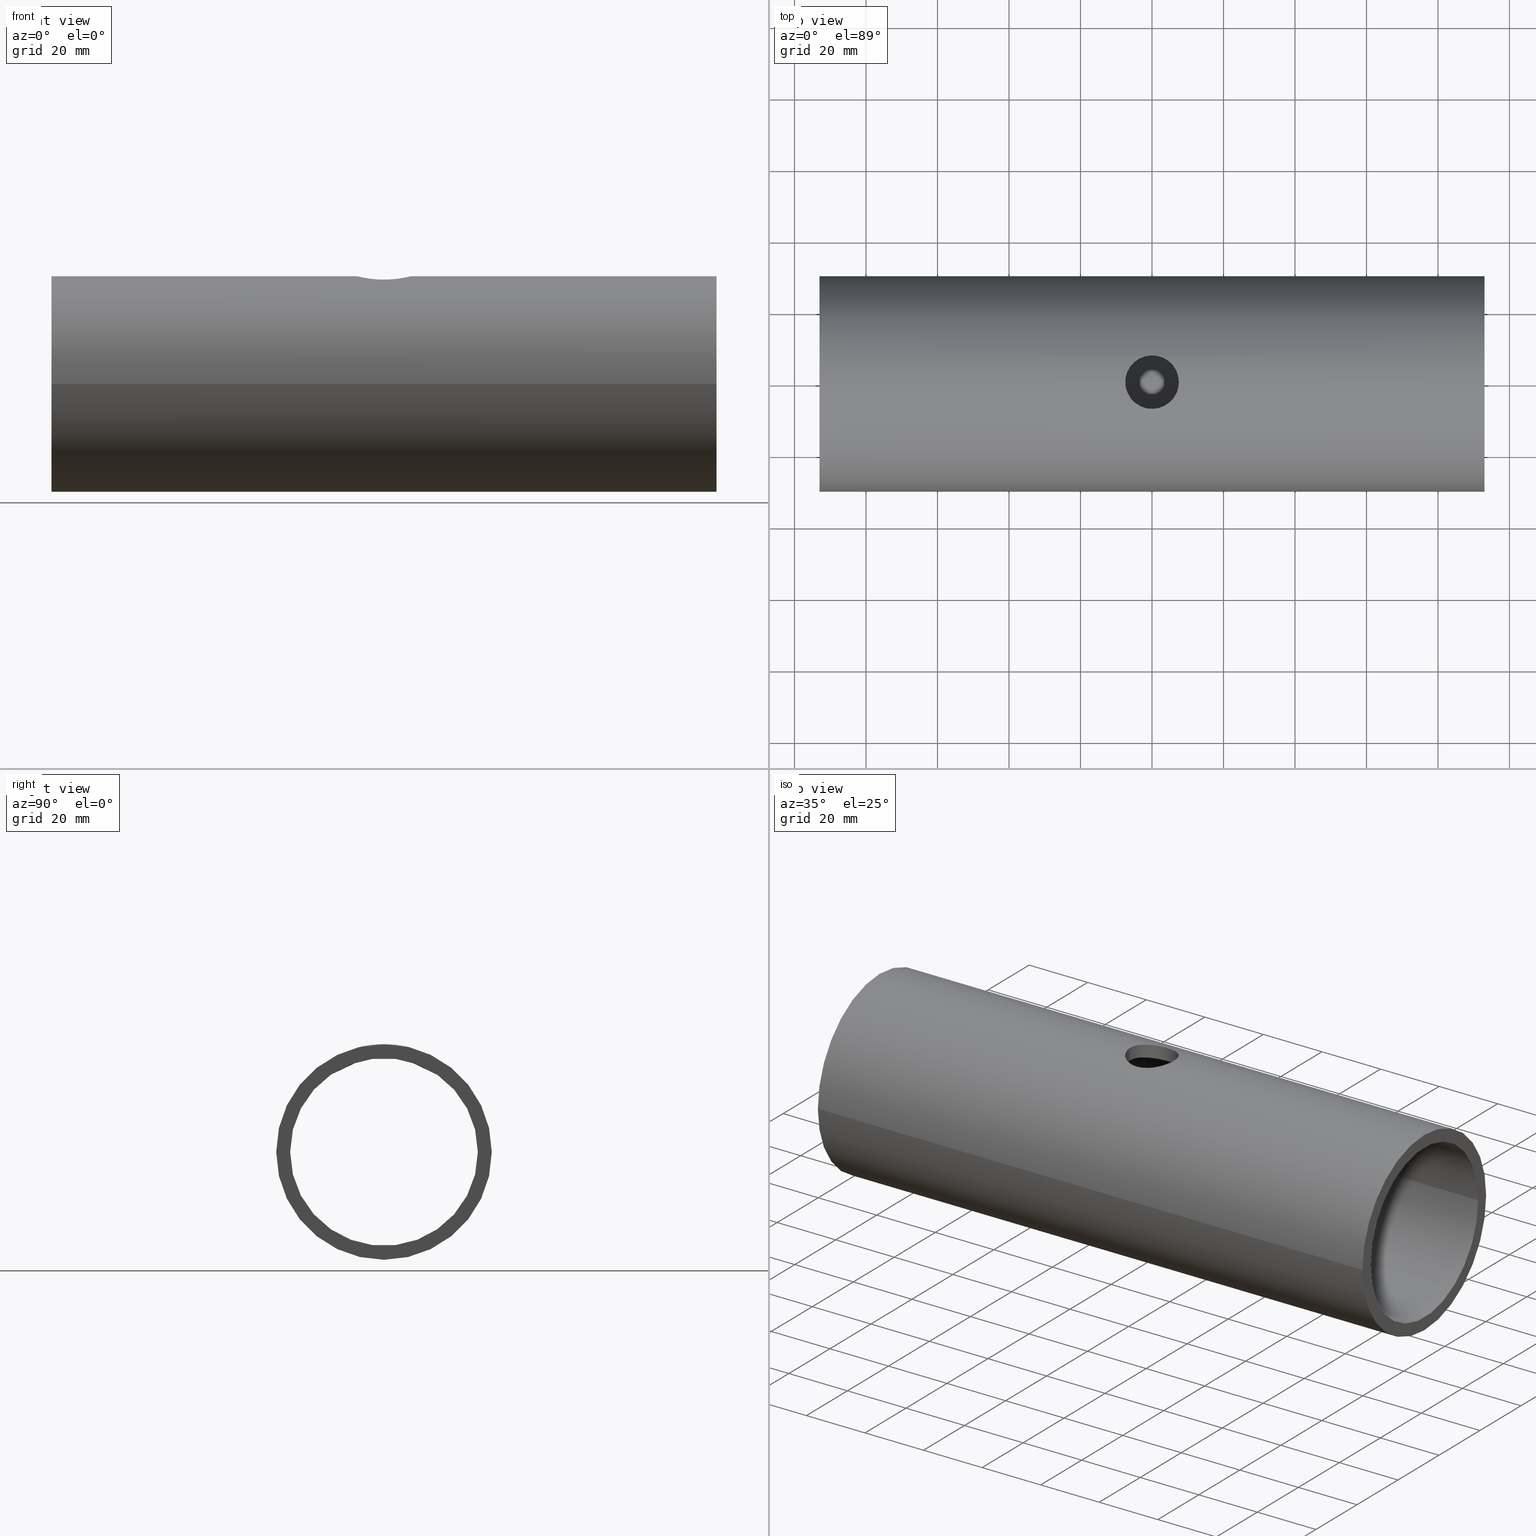
[diagram: canonical four-view strip — front | top / right | iso, engineering-drawing reading convention]
A machine part, canonical four-view strip (front | top / right | iso — engineering-drawing reading convention). The complete STEP part file that produces these views, byte-faithful:
ISO-10303-21;
HEADER;
FILE_DESCRIPTION (( 'STEP AP203' ),
    '1' );
FILE_NAME ('3674-45-11_REV_.step',
    '2026-02-06T22:18:12',
    ( '' ),
    ( '' ),
    'SwSTEP 2.0',
    'SolidWorks 2025',
    '' );
FILE_SCHEMA (( 'CONFIG_CONTROL_DESIGN' ));
ENDSEC;

DATA;
#1 = DIRECTION ( 'NONE',  ( 4.602914695792523219E-16, -1.000000000000000000, 0.000000000000000000 ) ) ;
#2 = AXIS2_PLACEMENT_3D ( 'NONE', #445, #294, #103 ) ;
#3 = CARTESIAN_POINT ( 'NONE',  ( 3.766071702715712899, 6.504168345304149668, 29.44138299919343638 ) ) ;
#4 = EDGE_LOOP ( 'NONE', ( #392, #283 ) ) ;
#5 = APPROVAL ( #441, 'UNSPECIFIED' ) ;
#6 = CARTESIAN_POINT ( 'NONE',  ( -4.569512397707423013, 5.952257490680894492, 29.55703187231505424 ) ) ;
#7 = CARTESIAN_POINT ( 'NONE',  ( 0.000000000000000000, 0.000000000000000000, 30.14999999999999858 ) ) ;
#8 = DIRECTION ( 'NONE',  ( 3.061616997868383141E-16, -1.000000000000000000, 0.000000000000000000 ) ) ;
#9 = CARTESIAN_POINT ( 'NONE',  ( 0.4982442228468673684, 7.487512512649368013, 25.15949742635218200 ) ) ;
#10 = B_SPLINE_CURVE_WITH_KNOTS ( 'NONE', 3,
 ( #129, #173, #20, #12, #176, #426, #469, #430, #210, #460, #286, #432, #276, #239, #356, #397, #389, #317, #62, #9, #93, #167, #312, #459, #128, #275, #53, #354, #319, #15, #461, #244, #391, #17, #448, #36, #224, #188, #181, #370, #367, #140 ),
 .UNSPECIFIED., .F., .F.,
 ( 4, 2, 2, 2, 2, 2, 2, 2, 2, 2, 2, 2, 2, 2, 2, 2, 2, 2, 2, 2, 4 ),
 ( 0.02357184798304131149, 0.02504468882056489626, 0.02651752965808848450, 0.02799037049561206580, 0.02946321133313565405, 0.03019963175189744470, 0.03093605217065923882, 0.03240889300818282359, 0.03388173384570640490, 0.03461815426446819555, 0.03535457468322998620, 0.03682741552075356750, 0.03756383593951535815, 0.03830025635827714880, 0.03977309719580073011, 0.04124593803332431141, 0.04198235845208610900, 0.04271877887084789965, 0.04419161970837148790, 0.04566446054589507614, 0.04713730138341866438 ),
 .UNSPECIFIED. ) ;
#11 = AXIS2_PLACEMENT_3D ( 'NONE', #350, #394, #237 ) ;
#12 = CARTESIAN_POINT ( 'NONE',  ( 7.257323325381391577, 1.956487219723090698, 26.18153013994171019 ) ) ;
#13 = CARTESIAN_POINT ( 'NONE',  ( 0.000000000000000000, 0.000000000000000000, 0.000000000000000000 ) ) ;
#14 = ADVANCED_FACE ( 'NONE', ( #162 ), #273, .F. ) ;
#15 = CARTESIAN_POINT ( 'NONE',  ( -4.579380598035382555, 5.960044461124792470, 25.56599154980069954 ) ) ;
#16 = CARTESIAN_POINT ( 'NONE',  ( -4.580762961181150672, -5.958988755115056435, 29.55658047178147640 ) ) ;
#17 = CARTESIAN_POINT ( 'NONE',  ( -5.947788700670843198, 4.575343241765798652, 25.84890158221534762 ) ) ;
#18 = ORIENTED_EDGE ( 'NONE', *, *, #59, .T. ) ;
#19 = CARTESIAN_POINT ( 'NONE',  ( 6.739165421114840626, -3.327752276682596655, 29.96924127577451458 ) ) ;
#20 = CARTESIAN_POINT ( 'NONE',  ( 7.451918818702840674, 0.9825935118486395226, 26.23613677163786662 ) ) ;
#21 = ORIENTED_EDGE ( 'NONE', *, *, #213, .F. ) ;
#22 = PERSON_AND_ORGANIZATION_ROLE ( 'design_supplier' ) ;
#23 = CARTESIAN_POINT ( 'NONE',  ( -0.4954307896302108660, -7.499779785306837532, 25.15583040220200672 ) ) ;
#24 = EDGE_LOOP ( 'NONE', ( #60, #475 ) ) ;
#25 = FACE_OUTER_BOUND ( 'NONE', #200, .T. ) ;
#26 = VERTEX_POINT ( 'NONE', #159 ) ;
#27 = DIRECTION ( 'NONE',  ( 1.000000000000000000, 3.061616997868383141E-16, -0.000000000000000000 ) ) ;
#28 = APPROVAL_PERSON_ORGANIZATION ( #369, #120, #111 ) ;
#29 = ORIENTED_EDGE ( 'NONE', *, *, #192, .T. ) ;
#30 = DATE_AND_TIME ( #105, #92 ) ;
#31 = CARTESIAN_POINT ( 'NONE',  ( -6.735596941494830681, -3.335135102591766820, 26.04126808146256167 ) ) ;
#32 = CC_DESIGN_PERSON_AND_ORGANIZATION_ASSIGNMENT ( #107, #472, ( #72 ) ) ;
#33 = PRODUCT ( '3674-45-11_REV_', '3674-45-11_REV_', '', ( #362 ) ) ;
#34 = LINE ( 'NONE', #222, #143 ) ;
#35 = CALENDAR_DATE ( 2026, 7, 2 ) ;
#36 = CARTESIAN_POINT ( 'NONE',  ( -6.504483939671300341, 3.765872697938024594, 25.98173926936478750 ) ) ;
#37 = CARTESIAN_POINT ( 'NONE',  ( 4.373605053020555467, 6.097618742075153975, 29.52728789388904573 ) ) ;
#38 = EDGE_CURVE ( 'NONE', #101, #86, #308, .T. ) ;
#39 = AXIS2_PLACEMENT_3D ( 'NONE', #100, #169, #171 ) ;
#40 = CARTESIAN_POINT ( 'NONE',  ( 5.960044983881700453, 4.579051822030483443, 29.80308120121776838 ) ) ;
#41 = CARTESIAN_POINT ( 'NONE',  ( 5.651066934731677094, 4.955251831151683106, 29.74208184411044442 ) ) ;
#42 = DIRECTION ( 'NONE',  ( 1.000000000000000000, 3.061616997868383141E-16, -0.000000000000000000 ) ) ;
#43 = CARTESIAN_POINT ( 'NONE',  ( -1.943605517665027094, 7.260406665600704024, 29.26292426905375876 ) ) ;
#44 = ADVANCED_FACE ( 'NONE', ( #414 ), #452, .F. ) ;
#45 = CARTESIAN_POINT ( 'NONE',  ( -4.947585292974384430, 5.641915681478429256, 29.61783735824583630 ) ) ;
#46 = FACE_OUTER_BOUND ( 'NONE', #208, .T. ) ;
#47 = FACE_OUTER_BOUND ( 'NONE', #336, .T. ) ;
#48 = ORIENTED_EDGE ( 'NONE', *, *, #462, .F. ) ;
#49 = DIRECTION ( 'NONE',  ( -1.000000000000000000, -3.061616997868383141E-16, 0.000000000000000000 ) ) ;
#50 = CC_DESIGN_PERSON_AND_ORGANIZATION_ASSIGNMENT ( #438, #444, ( #33 ) ) ;
#51 = APPLICATION_PROTOCOL_DEFINITION ( 'international standard', 'config_control_design', 1994, #147 ) ;
#52 = ORGANIZATION ( 'UNSPECIFIED', 'UNSPECIFIED', '' ) ;
#53 = CARTESIAN_POINT ( 'NONE',  ( -2.651573279083387469, 7.019901144310327190, 25.29412891396165364 ) ) ;
#54 = CARTESIAN_POINT ( 'NONE',  ( -2.421546531487737131, -7.102577172028079922, 29.30155876653483915 ) ) ;
#55 = DIRECTION ( 'NONE',  ( 5.286776307738840622E-16, -1.000000000000000000, 0.000000000000000000 ) ) ;
#56 = VERTEX_POINT ( 'NONE', #478 ) ;
#57 = CARTESIAN_POINT ( 'NONE',  ( 7.257568485236807199, -1.954565999791516573, 30.09046388291749352 ) ) ;
#58 = CARTESIAN_POINT ( 'NONE',  ( -93.00000000000000000, -1.665519646840400224E-14, 0.000000000000000000 ) ) ;
#59 = EDGE_CURVE ( 'NONE', #254, #219, #73, .T. ) ;
#60 = ORIENTED_EDGE ( 'NONE', *, *, #206, .T. ) ;
#61 = SECURITY_CLASSIFICATION_LEVEL ( 'unclassified' ) ;
#62 = CARTESIAN_POINT ( 'NONE',  ( 0.9901362894668428449, 7.438462277982056392, 25.17404284799605563 ) ) ;
#63 = ORIENTED_EDGE ( 'NONE', *, *, #428, .T. ) ;
#64 = PERSON_AND_ORGANIZATION ( #110, #52 ) ;
#65 = CARTESIAN_POINT ( 'NONE',  ( 2.421665530511560416, -7.115405333184021686, 25.26800389219186727 ) ) ;
#66 = VERTEX_POINT ( 'NONE', #119 ) ;
#67 = DATE_TIME_ROLE ( 'classification_date' ) ;
#68 = CARTESIAN_POINT ( 'NONE',  ( 5.959793766460320441, -4.579171722100744191, 25.85076796984041181 ) ) ;
#69 = EDGE_LOOP ( 'NONE', ( #83, #21 ) ) ;
#70 = EDGE_CURVE ( 'NONE', #26, #66, #259, .T. ) ;
#71 = CARTESIAN_POINT ( 'NONE',  ( 4.948487315591407310, -5.641125964974412987, 25.63719029907033331 ) ) ;
#72 = PRODUCT_DEFINITION_FORMATION_WITH_SPECIFIED_SOURCE ( 'ANY', '', #33, .NOT_KNOWN. ) ;
#73 = LINE ( 'NONE', #271, #104 ) ;
#74 = APPROVAL_DATE_TIME ( #285, #120 ) ;
#75 = CARTESIAN_POINT ( 'NONE',  ( -4.957307021794875368, -5.649050145479054486, 25.63735583606916890 ) ) ;
#76 = CARTESIAN_POINT ( 'NONE',  ( 7.500000000000000000, 0.4905005296950472049, 30.15000000000000213 ) ) ;
#77 = EDGE_CURVE ( 'NONE', #357, #145, #296, .T. ) ;
#78 = CARTESIAN_POINT ( 'NONE',  ( -7.257630751728805230, 1.954404536453142160, 30.09047882440297528 ) ) ;
#79 = CARTESIAN_POINT ( 'NONE',  ( -6.735591639686338006, 3.334789017853641013, 29.96843749655610267 ) ) ;
#80 = CARTESIAN_POINT ( 'NONE',  ( -93.00000000000001421, 30.14999999999998082, 0.000000000000000000 ) ) ;
#81 = CARTESIAN_POINT ( 'NONE',  ( -5.636234865242546910, 4.954054242681979581, 29.74082073236647261 ) ) ;
#82 = CARTESIAN_POINT ( 'NONE',  ( 7.500000000000000000, -0.2455578652031206732, 26.24999999999999645 ) ) ;
#83 = ORIENTED_EDGE ( 'NONE', *, *, #233, .F. ) ;
#84 = CLOSED_SHELL ( 'NONE', ( #14, #95, #284, #266, #158, #471, #166, #44 ) ) ;
#85 = CARTESIAN_POINT ( 'NONE',  ( -93.00000000000001421, 26.24999999999998224, 0.000000000000000000 ) ) ;
#86 = VERTEX_POINT ( 'NONE', #113 ) ;
#87 = CARTESIAN_POINT ( 'NONE',  ( 93.00000000000000000, 4.029087969194792054E-14, 0.000000000000000000 ) ) ;
#88 = EDGE_CURVE ( 'NONE', #466, #98, #34, .T. ) ;
#89 = CARTESIAN_POINT ( 'NONE',  ( -3.761507082169246452, -6.507226810316928400, 29.44073700516980452 ) ) ;
#90 = DIRECTION ( 'NONE',  ( 3.061616997868383141E-16, -1.000000000000000000, 0.000000000000000000 ) ) ;
#91 = CARTESIAN_POINT ( 'NONE',  ( 5.130747045207877832, -5.475928573975543223, 29.64907860583657850 ) ) ;
#92 = LOCAL_TIME ( 9, 18, 12.00000000000000000, #223 ) ;
#93 = CARTESIAN_POINT ( 'NONE',  ( 0.2483299581783618426, 7.499962883882426823, 25.15577581276076202 ) ) ;
#94 = ORIENTED_EDGE ( 'NONE', *, *, #77, .F. ) ;
#95 = ADVANCED_FACE ( 'NONE', ( #371, #46 ), #198, .T. ) ;
#96 = CARTESIAN_POINT ( 'NONE',  ( 3.326732777487045656, -6.726292422648419311, 29.39036565159637959 ) ) ;
#97 = DIRECTION ( 'NONE',  ( 5.286776307738840622E-16, -1.000000000000000000, 0.000000000000000000 ) ) ;
#98 = VERTEX_POINT ( 'NONE', #263 ) ;
#99 = PERSON_AND_ORGANIZATION ( #110, #52 ) ;
#100 = CARTESIAN_POINT ( 'NONE',  ( -93.00000000000000000, -1.665519646840400224E-14, 0.000000000000000000 ) ) ;
#101 = VERTEX_POINT ( 'NONE', #80 ) ;
#102 = PERSON_AND_ORGANIZATION_ROLE ( 'creator' ) ;
#103 = DIRECTION ( 'NONE',  ( 4.602914695792523219E-16, -1.000000000000000000, 0.000000000000000000 ) ) ;
#104 = VECTOR ( 'NONE', #419, 1000.000000000000000 ) ;
#105 = CALENDAR_DATE ( 2026, 7, 2 ) ;
#106 = DIRECTION ( 'NONE',  ( 1.000000000000000000, 3.061616997868383141E-16, -0.000000000000000000 ) ) ;
#107 = PERSON_AND_ORGANIZATION ( #110, #52 ) ;
#108 = CARTESIAN_POINT ( 'NONE',  ( -7.500000000000000000, 0.000000000000000000, 26.24999999999999645 ) ) ;
#109 = CARTESIAN_POINT ( 'NONE',  ( 0.000000000000000000, 0.000000000000000000, 30.14999999999999858 ) ) ;
#110 = PERSON ( 'UNSPECIFIED', 'UNSPECIFIED', 'UNSPECIFIED', ('UNSPECIFIED'), ('UNSPECIFIED'), ('UNSPECIFIED') ) ;
#111 = APPROVAL_ROLE ( '' ) ;
#112 = DIRECTION ( 'NONE',  ( -5.286776307738840622E-16, 1.000000000000000000, 0.000000000000000000 ) ) ;
#113 = CARTESIAN_POINT ( 'NONE',  ( 92.99999999999998579, 30.15000000000004476, 0.000000000000000000 ) ) ;
#114 = CARTESIAN_POINT ( 'NONE',  ( -2.654052559620941665, -7.018943290593978368, 25.29439405483505254 ) ) ;
#115 = CARTESIAN_POINT ( 'NONE',  ( -7.500000000000000000, 0.000000000000000000, 30.14999999999999503 ) ) ;
#116 = CARTESIAN_POINT ( 'NONE',  ( 7.402417214875510076, -1.230903245559818560, 26.22224469222763332 ) ) ;
#117 = CIRCLE ( 'NONE', #465, 30.14999999999999858 ) ;
#118 = CARTESIAN_POINT ( 'NONE',  ( -7.103786089475316423, -2.418084485709030229, 30.05380866094377623 ) ) ;
#119 = CARTESIAN_POINT ( 'NONE',  ( 93.00000000000001421, -30.14999999999995950, 3.692310099429269608E-15 ) ) ;
#120 = APPROVAL ( #293, 'UNSPECIFIED' ) ;
#121 = CARTESIAN_POINT ( 'NONE',  ( 5.132662113620228617, 5.474079756465464186, 29.64941507184972380 ) ) ;
#122 = DIRECTION ( 'NONE',  ( -1.000000000000000000, 0.000000000000000000, 0.000000000000000000 ) ) ;
#123 = CARTESIAN_POINT ( 'NONE',  ( 7.500000000000000000, 9.185202140829394798E-16, 26.25000000000000000 ) ) ;
#124 = DIRECTION ( 'NONE',  ( -1.000000000000000000, -3.061616997868383141E-16, 0.000000000000000000 ) ) ;
#125 = AXIS2_PLACEMENT_3D ( 'NONE', #417, #310, #97 ) ;
#126 = CARTESIAN_POINT ( 'NONE',  ( -2.651822549129052131, -7.019787900416890380, 29.32156775765682610 ) ) ;
#127 = EDGE_CURVE ( 'NONE', #86, #66, #117, .T. ) ;
#128 = CARTESIAN_POINT ( 'NONE',  ( -1.946825517914259063, 7.247145416207924740, 25.22988295778231915 ) ) ;
#129 = CARTESIAN_POINT ( 'NONE',  ( 7.500000000000000000, 9.185202140829394798E-16, 26.25000000000000000 ) ) ;
#130 = FACE_BOUND ( 'NONE', #69, .T. ) ;
#131 = CARTESIAN_POINT ( 'NONE',  ( -7.500000000000000000, 0.000000000000000000, 30.14999999999999858 ) ) ;
#132 = EDGE_CURVE ( 'NONE', #145, #98, #184, .T. ) ;
#133 = EDGE_LOOP ( 'NONE', ( #436, #214, #292, #320 ) ) ;
#134 = CARTESIAN_POINT ( 'NONE',  ( 3.102363331110137956, -6.832721081049528244, 29.36572565191767481 ) ) ;
#135 = CC_DESIGN_APPROVAL ( #5, ( #72 ) ) ;
#136 = CARTESIAN_POINT ( 'NONE',  ( 93.00000000000000000, 4.029087969194792054E-14, 0.000000000000000000 ) ) ;
#137 = EDGE_LOOP ( 'NONE', ( #251, #440, #29, #245 ) ) ;
#138 = CARTESIAN_POINT ( 'NONE',  ( 7.500000000000000888, -0.2453163262941969458, 30.14999999999999503 ) ) ;
#139 = DIRECTION ( 'NONE',  ( 1.000000000000000000, 3.061616997868383141E-16, -0.000000000000000000 ) ) ;
#140 = CARTESIAN_POINT ( 'NONE',  ( -7.500000000000000000, 0.000000000000000000, 26.24999999999999645 ) ) ;
#141 = DESIGN_CONTEXT ( 'detailed design', #344, 'design' ) ;
#142 = CARTESIAN_POINT ( 'NONE',  ( -5.637510002311412194, -4.952645468390433514, 25.77927375884239325 ) ) ;
#143 = VECTOR ( 'NONE', #383, 1000.000000000000000 ) ;
#144 = AXIS2_PLACEMENT_3D ( 'NONE', #87, #202, #422 ) ;
#145 = VERTEX_POINT ( 'NONE', #279 ) ;
#146 = COORDINATED_UNIVERSAL_TIME_OFFSET ( 10, 0, .AHEAD. ) ;
#147 = APPLICATION_CONTEXT ( 'configuration controlled 3d designs of mechanical parts and assemblies' ) ;
#148 = CARTESIAN_POINT ( 'NONE',  ( 6.502740149739227427, -3.768597344396964033, 25.98131429213729859 ) ) ;
#149 = CARTESIAN_POINT ( 'NONE',  ( -92.99999999999998579, -30.15000000000001634, 3.692310099429269608E-15 ) ) ;
#150 = CARTESIAN_POINT ( 'NONE',  ( -3.762350377321380446, -6.506730541467970141, 25.43235298066393568 ) ) ;
#151 = DIRECTION ( 'NONE',  ( 1.000000000000000000, 3.061616997868383141E-16, -0.000000000000000000 ) ) ;
#152 = EDGE_CURVE ( 'NONE', #101, #26, #190, .T. ) ;
#153 = CARTESIAN_POINT ( 'NONE',  ( -6.504952719529422112, -3.764981594919491137, 25.98186096117645860 ) ) ;
#154 = VECTOR ( 'NONE', #269, 1000.000000000000000 ) ;
#155 = CARTESIAN_POINT ( 'NONE',  ( -7.500000000000004441, 0.4975133919157953000, 30.15000000000000924 ) ) ;
#156 = CARTESIAN_POINT ( 'NONE',  ( 7.257022267147787531, -1.956844783364594775, 26.18144794486693172 ) ) ;
#157 = CARTESIAN_POINT ( 'NONE',  ( -7.307132511443547251, -1.707592623641839502, 30.10256673535183225 ) ) ;
#158 = ADVANCED_FACE ( 'NONE', ( #315 ), #464, .T. ) ;
#159 = CARTESIAN_POINT ( 'NONE',  ( -92.99999999999998579, -30.15000000000001990, 3.692310099429272763E-15 ) ) ;
#160 =( GEOMETRIC_REPRESENTATION_CONTEXT ( 3 ) GLOBAL_UNCERTAINTY_ASSIGNED_CONTEXT ( ( #327 ) ) GLOBAL_UNIT_ASSIGNED_CONTEXT ( ( #311, #386, #201 ) ) REPRESENTATION_CONTEXT ( 'NONE', 'WORKASPACE' ) );
#161 = CARTESIAN_POINT ( 'NONE',  ( 3.336186395054809406, 6.735269054361809005, 29.38871611507167714 ) ) ;
#162 = FACE_OUTER_BOUND ( 'NONE', #401, .T. ) ;
#163 = ADVANCED_BREP_SHAPE_REPRESENTATION ( '3674-45-11_REV_', ( #467, #331 ), #160 ) ;
#164 = CARTESIAN_POINT ( 'NONE',  ( -6.505207015342332255, 3.764868579568580564, 29.91686074839271114 ) ) ;
#165 = CARTESIAN_POINT ( 'NONE',  ( -93.00000000000001421, 30.14999999999998082, 0.000000000000000000 ) ) ;
#166 = ADVANCED_FACE ( 'NONE', ( #282, #250 ), #424, .F. ) ;
#167 = CARTESIAN_POINT ( 'NONE',  ( -0.4932893763482117389, 7.500073979778701272, 25.15574269036435595 ) ) ;
#168 = CIRCLE ( 'NONE', #228, 26.25000000000000000 ) ;
#169 = DIRECTION ( 'NONE',  ( -1.000000000000000000, -3.061616997868383141E-16, 0.000000000000000000 ) ) ;
#170 = CARTESIAN_POINT ( 'NONE',  ( -93.00000000000000000, -1.665519646840400224E-14, 0.000000000000000000 ) ) ;
#171 = DIRECTION ( 'NONE',  ( 4.602914695792523219E-16, -1.000000000000000000, 0.000000000000000000 ) ) ;
#172 = CARTESIAN_POINT ( 'NONE',  ( -3.328092222977030890, -6.738853177729461130, 29.38787827632004479 ) ) ;
#173 = CARTESIAN_POINT ( 'NONE',  ( 7.500000000000000000, 0.4909825002862310273, 26.25000000000000711 ) ) ;
#174 = CARTESIAN_POINT ( 'NONE',  ( 7.402539458175037446, -1.230067767044769278, 30.12586753145299312 ) ) ;
#175 = AXIS2_PLACEMENT_3D ( 'NONE', #341, #227, #485 ) ;
#176 = CARTESIAN_POINT ( 'NONE',  ( 7.113836750685355703, 2.425452911901687880, 26.14166035846440650 ) ) ;
#177 = ORIENTED_EDGE ( 'NONE', *, *, #333, .T. ) ;
#178 = DATE_AND_TIME ( #407, #306 ) ;
#179 = FACE_OUTER_BOUND ( 'NONE', #133, .T. ) ;
#180 = ORIENTED_EDGE ( 'NONE', *, *, #70, .T. ) ;
#181 = CARTESIAN_POINT ( 'NONE',  ( -7.257729075573986499, 1.953876576627915362, 26.18164515216760080 ) ) ;
#182 = PRODUCT_DEFINITION_SHAPE ( 'NONE', 'NONE',  #484 ) ;
#183 = CARTESIAN_POINT ( 'NONE',  ( -7.246822489867941641, -1.947966752084596687, 26.17869650504931656 ) ) ;
#184 = CIRCLE ( 'NONE', #125, 26.25000000000000000 ) ;
#185 = APPROVAL_STATUS ( 'not_yet_approved' ) ;
#186 = CYLINDRICAL_SURFACE ( 'NONE', #421, 26.25000000000000000 ) ;
#187 = APPLICATION_PROTOCOL_DEFINITION ( 'international standard', 'config_control_design', 1994, #344 ) ;
#188 = CARTESIAN_POINT ( 'NONE',  ( -7.111404207987189530, 2.432616021029860853, 26.14099483213148289 ) ) ;
#189 = CARTESIAN_POINT ( 'NONE',  ( 7.452356891921847470, 0.9794373226105089758, 30.13803647814817666 ) ) ;
#190 = CIRCLE ( 'NONE', #39, 30.14999999999999858 ) ;
#191 = CARTESIAN_POINT ( 'NONE',  ( -0.9803910238065935978, 7.451841436761557524, 29.21476169554764013 ) ) ;
#192 = EDGE_CURVE ( 'NONE', #211, #56, #247, .T. ) ;
#193 = CARTESIAN_POINT ( 'NONE',  ( 0.2497314937825466374, 7.499921114505808895, 29.20228900758911905 ) ) ;
#194 = DIRECTION ( 'NONE',  ( -1.000000000000000000, 0.000000000000000000, 0.000000000000000000 ) ) ;
#195 = CARTESIAN_POINT ( 'NONE',  ( 1.474577045620115490, 7.365798283767518662, 29.23652853252231409 ) ) ;
#196 = LOCAL_TIME ( 9, 18, 12.00000000000000000, #298 ) ;
#197 = CARTESIAN_POINT ( 'NONE',  ( 7.500000000000000000, 9.184921415273049910E-16, 30.14999999999999858 ) ) ;
#198 = CYLINDRICAL_SURFACE ( 'NONE', #313, 30.14999999999999858 ) ;
#199 = PLANE ( 'NONE',  #411 ) ;
#200 = EDGE_LOOP ( 'NONE', ( #94, #234, #470, #360 ) ) ;
#201 =( NAMED_UNIT ( * ) SI_UNIT ( $, .STERADIAN. ) SOLID_ANGLE_UNIT ( ) );
#202 = DIRECTION ( 'NONE',  ( -1.000000000000000000, -3.061616997868383141E-16, 0.000000000000000000 ) ) ;
#203 = AXIS2_PLACEMENT_3D ( 'NONE', #329, #27, #112 ) ;
#204 = DIRECTION ( 'NONE',  ( -1.000000000000000000, -3.061616997868383141E-16, 0.000000000000000000 ) ) ;
#205 = CARTESIAN_POINT ( 'NONE',  ( -5.950425103151749440, -4.571965928724423200, 29.80195665606953170 ) ) ;
#206 = EDGE_CURVE ( 'NONE', #98, #145, #437, .T. ) ;
#207 = DIRECTION ( 'NONE',  ( -4.602914695792523219E-16, 1.000000000000000000, 0.000000000000000000 ) ) ;
#208 = EDGE_LOOP ( 'NONE', ( #248, #180, #289, #433 ) ) ;
#209 = CARTESIAN_POINT ( 'NONE',  ( -1.709318193299613986, -7.306795961031325781, 29.25125152650506877 ) ) ;
#210 = CARTESIAN_POINT ( 'NONE',  ( 5.650271246520413904, 4.956182449128235135, 25.78029389019253870 ) ) ;
#211 = VERTEX_POINT ( 'NONE', #323 ) ;
#212 = CARTESIAN_POINT ( 'NONE',  ( -3.330092453580004275, -6.737857513618714655, 25.37127348395359050 ) ) ;
#213 = EDGE_CURVE ( 'NONE', #357, #466, #376, .T. ) ;
#214 = ORIENTED_EDGE ( 'NONE', *, *, #77, .T. ) ;
#215 = APPROVAL_DATE_TIME ( #396, #415 ) ;
#216 = CARTESIAN_POINT ( 'NONE',  ( 4.570411846740224604, -5.951568231689370769, 25.56690564317473857 ) ) ;
#217 = ORIENTED_EDGE ( 'NONE', *, *, #152, .F. ) ;
#218 = CARTESIAN_POINT ( 'NONE',  ( 6.738411789018767806, -3.329209596498880597, 26.04200243331143838 ) ) ;
#219 = VERTEX_POINT ( 'NONE', #351 ) ;
#220 = PERSON_AND_ORGANIZATION ( #110, #52 ) ;
#221 = AXIS2_PLACEMENT_3D ( 'NONE', #136, #49, #90 ) ;
#222 = CARTESIAN_POINT ( 'NONE',  ( -93.00000000000001421, 26.24999999999998224, 0.000000000000000000 ) ) ;
#223 = COORDINATED_UNIVERSAL_TIME_OFFSET ( 10, 0, .AHEAD. ) ;
#224 = CARTESIAN_POINT ( 'NONE',  ( -6.734812539582997637, 3.336463782483592766, 26.04106835265158892 ) ) ;
#225 = CARTESIAN_POINT ( 'NONE',  ( 0.4990587722032245876, 7.487433760977843633, 29.20550415064895944 ) ) ;
#226 = B_SPLINE_CURVE_WITH_KNOTS ( 'NONE', 3,
 ( #304, #267, #486, #157, #305, #118, #268, #416, #238, #318, #205, #235, #384, #355, #16, #89, #172, #126, #54, #457, #209, #388, #274, #236, #243, #463, #429, #134, #96, #358, #281, #316, #322, #425, #91, #246, #393, #423, #19, #390, #57, #174, #468, #278, #138, #420 ),
 .UNSPECIFIED., .F., .F.,
 ( 4, 2, 2, 2, 2, 2, 2, 2, 2, 2, 2, 2, 2, 2, 2, 2, 2, 2, 2, 2, 2, 2, 4 ),
 ( 0.000000000000000000, 0.001471322269676322890, 0.002206983404514484878, 0.002942644539352647082, 0.004413966809028971490, 0.005149627943867134128, 0.005885289078705296766, 0.007356611348381623776, 0.008827933618057949919, 0.009563594752896115159, 0.01029925588773427866, 0.01177057815741060394, 0.01324190042708693268, 0.01471322269676325969, 0.01544888383160142320, 0.01618454496643958671, 0.01692020610127775021, 0.01765586723611591718, 0.01912718950579224073, 0.02059851177546856080, 0.02206983404514488434, 0.02280549517998304437, 0.02354115631482120788 ),
 .UNSPECIFIED. ) ;
#227 = DIRECTION ( 'NONE',  ( -1.000000000000000000, -3.061616997868383141E-16, 0.000000000000000000 ) ) ;
#228 = AXIS2_PLACEMENT_3D ( 'NONE', #58, #204, #55 ) ;
#229 = CARTESIAN_POINT ( 'NONE',  ( 2.652066994098781105, 7.019796142560697838, 29.32156984454651649 ) ) ;
#230 = CARTESIAN_POINT ( 'NONE',  ( -5.946970573337897470, 4.576389176574049422, 29.80127066718347706 ) ) ;
#231 = DIRECTION ( 'NONE',  ( 0.000000000000000000, 0.000000000000000000, -1.000000000000000000 ) ) ;
#232 = CARTESIAN_POINT ( 'NONE',  ( -3.326864187929616357, 6.739568182332551061, 29.38771701239393153 ) ) ;
#233 = EDGE_CURVE ( 'NONE', #466, #357, #168, .T. ) ;
#234 = ORIENTED_EDGE ( 'NONE', *, *, #213, .T. ) ;
#235 = CARTESIAN_POINT ( 'NONE',  ( -5.638263810258049347, -4.951809019698746539, 29.74120173120269328 ) ) ;
#236 = CARTESIAN_POINT ( 'NONE',  ( 0.4882143344692567721, -7.500204959943273408, 29.20221610775301002 ) ) ;
#237 = DIRECTION ( 'NONE',  ( 5.286776307738840622E-16, -1.000000000000000000, 0.000000000000000000 ) ) ;
#238 = CARTESIAN_POINT ( 'NONE',  ( -6.506147090195717020, -3.762942013762233806, 29.91707855406400540 ) ) ;
#239 = CARTESIAN_POINT ( 'NONE',  ( 3.767512594301681617, 6.503277777481168975, 25.43319712410920630 ) ) ;
#240 = B_SPLINE_CURVE_WITH_KNOTS ( 'NONE', 3,
 ( #108, #403, #409, #482, #183, #326, #442, #31, #153, #332, #408, #142, #373, #75, #480, #150, #212, #114, #300, #299, #363, #477, #23, #291, #399, #439, #65, #473, #255, #258, #288, #434, #216, #71, #405, #365, #68, #148, #218, #379, #156, #116, #303, #272, #82, #123 ),
 .UNSPECIFIED., .F., .F.,
 ( 4, 2, 2, 2, 2, 2, 2, 2, 2, 2, 2, 2, 2, 2, 2, 2, 2, 2, 2, 2, 2, 2, 4 ),
 ( 0.000000000000000000, 0.001473240498940076330, 0.002209860748410115254, 0.002946480997880153961, 0.004419721496820232243, 0.005156341746290273552, 0.005892961995760314861, 0.007366202494700398347, 0.008839442993640481833, 0.009576063243110524009, 0.01031268349258056619, 0.01178592399152065054, 0.01325916449046073489, 0.01473240498940081925, 0.01546902523887086142, 0.01620564548834090013, 0.01694226573781094231, 0.01767888598728098101, 0.01915212648622106537, 0.02062536698516114625, 0.02209860748410123060, 0.02283522773357126931, 0.02357184798304131149 ),
 .UNSPECIFIED. ) ;
#241 = VECTOR ( 'NONE', #42, 1000.000000000000000 ) ;
#242 = EDGE_CURVE ( 'NONE', #219, #56, #10, .T. ) ;
#243 = CARTESIAN_POINT ( 'NONE',  ( 0.9874810106022189338, -7.450921503063904439, 29.21499814875050660 ) ) ;
#244 = CARTESIAN_POINT ( 'NONE',  ( -5.472852982011519707, 5.133906058509772663, 25.74366513659960276 ) ) ;
#245 = ORIENTED_EDGE ( 'NONE', *, *, #242, .F. ) ;
#246 = CARTESIAN_POINT ( 'NONE',  ( 5.651803211857749254, -4.954649978676517463, 29.74220178934695724 ) ) ;
#247 = LINE ( 'NONE', #131, #252 ) ;
#248 = ORIENTED_EDGE ( 'NONE', *, *, #428, .F. ) ;
#249 = CALENDAR_DATE ( 2026, 7, 2 ) ;
#250 = FACE_OUTER_BOUND ( 'NONE', #4, .T. ) ;
#251 = ORIENTED_EDGE ( 'NONE', *, *, #59, .F. ) ;
#252 = VECTOR ( 'NONE', #359, 1000.000000000000000 ) ;
#253 = CYLINDRICAL_SURFACE ( 'NONE', #203, 26.25000000000000000 ) ;
#254 = VERTEX_POINT ( 'NONE', #261 ) ;
#255 = CARTESIAN_POINT ( 'NONE',  ( 3.329099623049039725, -6.725110091659699307, 25.37419375296325441 ) ) ;
#256 = ORIENTED_EDGE ( 'NONE', *, *, #70, .F. ) ;
#257 = DATE_TIME_ROLE ( 'creation_date' ) ;
#258 = CARTESIAN_POINT ( 'NONE',  ( 3.760854861028969598, -6.493533765170020011, 25.43444187707800452 ) ) ;
#259 = LINE ( 'NONE', #149, #154 ) ;
#260 = COORDINATED_UNIVERSAL_TIME_OFFSET ( 10, 0, .AHEAD. ) ;
#261 = CARTESIAN_POINT ( 'NONE',  ( 7.500000000000000000, 9.184921415273049910E-16, 30.14999999999999858 ) ) ;
#262 = CC_DESIGN_APPROVAL ( #415, ( #447 ) ) ;
#263 = CARTESIAN_POINT ( 'NONE',  ( 92.99999999999998579, 26.25000000000003553, 0.000000000000000000 ) ) ;
#264 = DIRECTION ( 'NONE',  ( -5.286776307738840622E-16, 1.000000000000000000, 0.000000000000000000 ) ) ;
#265 = CARTESIAN_POINT ( 'NONE',  ( 1.949317793693996936, 7.246404862537918490, 29.26632075175182024 ) ) ;
#266 = ADVANCED_FACE ( 'NONE', ( #25, #335 ), #186, .F. ) ;
#267 = CARTESIAN_POINT ( 'NONE',  ( -7.500000000000002665, -0.4976474038176006975, 30.14999999999999503 ) ) ;
#268 = CARTESIAN_POINT ( 'NONE',  ( -7.019674602828236409, -2.652269279872598418, 30.03397924884832904 ) ) ;
#269 = DIRECTION ( 'NONE',  ( 1.000000000000000000, 3.061616997868383141E-16, -0.000000000000000000 ) ) ;
#270 = CARTESIAN_POINT ( 'NONE',  ( -2.422259537131511653, 7.114946475133408832, 29.29909942542335699 ) ) ;
#271 = CARTESIAN_POINT ( 'NONE',  ( 7.500000000000000000, 9.184850993605147944E-16, 30.14999999999999858 ) ) ;
#272 = CARTESIAN_POINT ( 'NONE',  ( 7.487970237574799626, -0.4913853977594473399, 26.24655510308049244 ) ) ;
#273 = CYLINDRICAL_SURFACE ( 'NONE', #340, 7.500000000000000000 ) ;
#274 = CARTESIAN_POINT ( 'NONE',  ( -0.4944913900703654663, -7.499793726675769712, 29.20232172452015362 ) ) ;
#275 = CARTESIAN_POINT ( 'NONE',  ( -2.420343119787519370, 7.103040578749562961, 25.27083151152125495 ) ) ;
#276 = CARTESIAN_POINT ( 'NONE',  ( 4.374061799618885971, 6.097276164234351370, 25.53243295943962821 ) ) ;
#277 = EDGE_CURVE ( 'NONE', #66, #86, #382, .T. ) ;
#278 = CARTESIAN_POINT ( 'NONE',  ( 7.487994097889282052, -0.4910265475897015452, 30.14700650159188200 ) ) ;
#279 = CARTESIAN_POINT ( 'NONE',  ( 93.00000000000001421, -26.24999999999995737, 3.214697847761801189E-15 ) ) ;
#280 = CC_DESIGN_APPROVAL ( #120, ( #484 ) ) ;
#281 = CARTESIAN_POINT ( 'NONE',  ( 3.968391808847914870, -6.368773135371746719, 29.46999188444867457 ) ) ;
#282 = FACE_BOUND ( 'NONE', #24, .T. ) ;
#283 = ORIENTED_EDGE ( 'NONE', *, *, #277, .F. ) ;
#284 = ADVANCED_FACE ( 'NONE', ( #179 ), #253, .F. ) ;
#285 = DATE_AND_TIME ( #290, #427 ) ;
#286 = CARTESIAN_POINT ( 'NONE',  ( 4.948289129293734767, 5.641310561938008838, 25.63715060133847601 ) ) ;
#287 = COORDINATED_UNIVERSAL_TIME_OFFSET ( 10, 0, .AHEAD. ) ;
#288 = CARTESIAN_POINT ( 'NONE',  ( 3.969903232452988817, -6.367824406519703828, 25.46630650255037054 ) ) ;
#289 = ORIENTED_EDGE ( 'NONE', *, *, #277, .T. ) ;
#290 = CALENDAR_DATE ( 2026, 7, 2 ) ;
#291 = CARTESIAN_POINT ( 'NONE',  ( 0.4887408361427151848, -7.500218722843835728, 25.15569953632676103 ) ) ;
#292 = ORIENTED_EDGE ( 'NONE', *, *, #206, .F. ) ;
#293 = APPROVAL_STATUS ( 'not_yet_approved' ) ;
#294 = DIRECTION ( 'NONE',  ( -1.000000000000000000, -3.061616997868383141E-16, 0.000000000000000000 ) ) ;
#295 = CC_DESIGN_PERSON_AND_ORGANIZATION_ASSIGNMENT ( #402, #102, ( #484 ) ) ;
#296 = LINE ( 'NONE', #443, #241 ) ;
#297 = B_SPLINE_CURVE_WITH_KNOTS ( 'NONE', 3,
 ( #197, #76, #189, #453, #309, #375, #377, #450, #449, #40, #41, #121, #345, #374, #37, #3, #161, #229, #307, #265, #195, #339, #225, #193, #410, #191, #43, #270, #232, #418, #381, #6, #45, #451, #455, #81, #230, #347, #164, #79, #483, #78, #342, #155, #115 ),
 .UNSPECIFIED., .F., .F.,
 ( 4, 2, 2, 2, 2, 2, 2, 2, 2, 2, 1, 2, 2, 2, 2, 2, 2, 2, 2, 2, 2, 2, 4 ),
 ( 0.02354115631482120788, 0.02501208237084502281, 0.02648300842686884121, 0.02721847145488074868, 0.02795393448289265614, 0.02942486053891647108, 0.03016032356692837854, 0.03089578659494028601, 0.03236671265096410094, 0.03310217567897601187, 0.03383763870698791587, 0.03457310173499981987, 0.03530856476301173080, 0.03677949081903554573, 0.03825041687505936067, 0.03972134293108317560, 0.04045680595909508653, 0.04119226898710699053, 0.04192773201511889453, 0.04266319504313080546, 0.04413412109915461345, 0.04560504715517842145, 0.04707597321120222944 ),
 .UNSPECIFIED. ) ;
#298 = COORDINATED_UNIVERSAL_TIME_OFFSET ( 10, 0, .AHEAD. ) ;
#299 = CARTESIAN_POINT ( 'NONE',  ( -1.952880253302268443, -7.245470657837382866, 25.23036323795800584 ) ) ;
#300 = CARTESIAN_POINT ( 'NONE',  ( -2.423745247340379549, -7.101833940139360202, 25.27116991473822694 ) ) ;
#301 = APPROVAL_PERSON_ORGANIZATION ( #99, #415, #325 ) ;
#302 = CC_DESIGN_DATE_AND_TIME_ASSIGNMENT ( #431, #67, ( #447 ) ) ;
#303 = CARTESIAN_POINT ( 'NONE',  ( 7.439335117364487715, -0.9835908191340029250, 26.23272123681961787 ) ) ;
#304 = CARTESIAN_POINT ( 'NONE',  ( -7.500000000000000000, 0.000000000000000000, 30.14999999999999503 ) ) ;
#305 = CARTESIAN_POINT ( 'NONE',  ( -7.247387241459818163, -1.945838522944582927, 30.08807504728859428 ) ) ;
#306 = LOCAL_TIME ( 9, 18, 12.00000000000000000, #146 ) ;
#307 = CARTESIAN_POINT ( 'NONE',  ( 2.418854200822524891, 7.103475744154301275, 29.30134034696099476 ) ) ;
#308 = LINE ( 'NONE', #165, #413 ) ;
#309 = CARTESIAN_POINT ( 'NONE',  ( 7.114599166557021626, 2.423139489458612683, 30.05589392545645921 ) ) ;
#310 = DIRECTION ( 'NONE',  ( -1.000000000000000000, -3.061616997868383141E-16, 0.000000000000000000 ) ) ;
#311 =( LENGTH_UNIT ( ) NAMED_UNIT ( * ) SI_UNIT ( .MILLI., .METRE. ) );
#312 = CARTESIAN_POINT ( 'NONE',  ( -0.9817838444267446008, 7.451732760015125301, 25.17030395290986888 ) ) ;
#313 = AXIS2_PLACEMENT_3D ( 'NONE', #343, #151, #456 ) ;
#314 = CC_DESIGN_PERSON_AND_ORGANIZATION_ASSIGNMENT ( #64, #337, ( #447 ) ) ;
#315 = FACE_OUTER_BOUND ( 'NONE', #334, .T. ) ;
#316 = CARTESIAN_POINT ( 'NONE',  ( 4.373520016750903849, -6.097682138439433075, 29.52727494127863039 ) ) ;
#317 = CARTESIAN_POINT ( 'NONE',  ( 1.233156100729055016, 7.401981414836988904, 25.18483043203504934 ) ) ;
#318 = CARTESIAN_POINT ( 'NONE',  ( -6.097854961790203809, -4.373338027699252173, 29.83183903060156794 ) ) ;
#319 = CARTESIAN_POINT ( 'NONE',  ( -3.760138081456863457, 6.508011850682597021, 25.43202382144291818 ) ) ;
#320 = ORIENTED_EDGE ( 'NONE', *, *, #88, .F. ) ;
#321 = CC_DESIGN_SECURITY_CLASSIFICATION ( #447, ( #72 ) ) ;
#322 = CARTESIAN_POINT ( 'NONE',  ( 4.569358043913649858, -5.952378046291782354, 29.55700774842665268 ) ) ;
#323 = CARTESIAN_POINT ( 'NONE',  ( -7.500000000000000000, 0.000000000000000000, 30.14999999999999503 ) ) ;
#324 = ORIENTED_EDGE ( 'NONE', *, *, #378, .F. ) ;
#325 = APPROVAL_ROLE ( '' ) ;
#326 = CARTESIAN_POINT ( 'NONE',  ( -7.102950407663639609, -2.420559062108124326, 26.13923524125284814 ) ) ;
#327 = UNCERTAINTY_MEASURE_WITH_UNIT (LENGTH_MEASURE( 1.000000000000000082E-05 ), #311, 'distance_accuracy_value', 'NONE');
#328 = ORIENTED_EDGE ( 'NONE', *, *, #152, .T. ) ;
#329 = CARTESIAN_POINT ( 'NONE',  ( -93.00000000000000000, -1.665519646840400224E-14, 0.000000000000000000 ) ) ;
#330 = ORIENTED_EDGE ( 'NONE', *, *, #127, .T. ) ;
#331 = AXIS2_PLACEMENT_3D ( 'NONE', #13, #353, #481 ) ;
#332 = CARTESIAN_POINT ( 'NONE',  ( -6.096642825507692542, -4.375022323546988723, 25.88366475255121912 ) ) ;
#333 = EDGE_CURVE ( 'NONE', #56, #219, #240, .T. ) ;
#334 = EDGE_LOOP ( 'NONE', ( #256, #217, #364, #330 ) ) ;
#335 = FACE_BOUND ( 'NONE', #404, .T. ) ;
#336 = EDGE_LOOP ( 'NONE', ( #328, #63 ) ) ;
#337 = PERSON_AND_ORGANIZATION_ROLE ( 'classification_officer' ) ;
#338 = CARTESIAN_POINT ( 'NONE',  ( -93.00000000000000000, -1.665519646840400224E-14, 0.000000000000000000 ) ) ;
#339 = CARTESIAN_POINT ( 'NONE',  ( 0.9894708228408799489, 7.438526162748265946, 29.21799899966995184 ) ) ;
#340 = AXIS2_PLACEMENT_3D ( 'NONE', #7, #380, #194 ) ;
#341 = CARTESIAN_POINT ( 'NONE',  ( -93.00000000000000000, -1.665519646840400224E-14, 0.000000000000000000 ) ) ;
#342 = CARTESIAN_POINT ( 'NONE',  ( -7.450976324025472941, 0.9878527417384330711, 30.13769665940967002 ) ) ;
#343 = CARTESIAN_POINT ( 'NONE',  ( -93.00000000000000000, -1.665519646840400224E-14, 0.000000000000000000 ) ) ;
#344 = APPLICATION_CONTEXT ( 'configuration controlled 3d designs of mechanical parts and assemblies' ) ;
#345 = CARTESIAN_POINT ( 'NONE',  ( 4.949586755817242611, 5.640208371252256825, 29.61816659592330225 ) ) ;
#346 = APPROVAL_PERSON_ORGANIZATION ( #220, #5, #476 ) ;
#347 = CARTESIAN_POINT ( 'NONE',  ( -6.094622180357131214, 4.377906909947874681, 29.83117503892306743 ) ) ;
#348 = CARTESIAN_POINT ( 'NONE',  ( 93.00000000000000000, 4.029087969194792054E-14, 0.000000000000000000 ) ) ;
#349 = DIRECTION ( 'NONE',  ( -1.000000000000000000, -3.061616997868383141E-16, 0.000000000000000000 ) ) ;
#350 = CARTESIAN_POINT ( 'NONE',  ( -93.00000000000000000, -1.665519646840400224E-14, 0.000000000000000000 ) ) ;
#351 = CARTESIAN_POINT ( 'NONE',  ( 7.500000000000000000, 9.185202140829394798E-16, 26.25000000000000000 ) ) ;
#352 = CIRCLE ( 'NONE', #175, 30.14999999999999858 ) ;
#353 = DIRECTION ( 'NONE',  ( 0.000000000000000000, 0.000000000000000000, 1.000000000000000000 ) ) ;
#354 = CARTESIAN_POINT ( 'NONE',  ( -3.329351404825918959, 6.738310689196337577, 25.37115581568690104 ) ) ;
#355 = CARTESIAN_POINT ( 'NONE',  ( -4.957126321087399923, -5.649266940963441286, 29.61807993672217520 ) ) ;
#356 = CARTESIAN_POINT ( 'NONE',  ( 3.337608350023149928, 6.734658048627153448, 25.37214533677547124 ) ) ;
#357 = VERTEX_POINT ( 'NONE', #412 ) ;
#358 = CARTESIAN_POINT ( 'NONE',  ( 3.759101971902038208, -6.494560269381323359, 29.44244028264110113 ) ) ;
#359 = DIRECTION ( 'NONE',  ( 0.000000000000000000, 0.000000000000000000, -1.000000000000000000 ) ) ;
#360 = ORIENTED_EDGE ( 'NONE', *, *, #132, .F. ) ;
#361 = AXIS2_PLACEMENT_3D ( 'NONE', #109, #231, #122 ) ;
#362 = MECHANICAL_CONTEXT ( 'NONE', #147, 'mechanical' ) ;
#363 = CARTESIAN_POINT ( 'NONE',  ( -1.710908588618183845, -7.306426584719936557, 25.21271845319628113 ) ) ;
#364 = ORIENTED_EDGE ( 'NONE', *, *, #38, .T. ) ;
#365 = CARTESIAN_POINT ( 'NONE',  ( 5.651282889424636302, -4.955110513325930555, 25.78050852553939976 ) ) ;
#366 = PERSON_AND_ORGANIZATION ( #110, #52 ) ;
#367 = CARTESIAN_POINT ( 'NONE',  ( -7.500000000000000888, 0.4982058163592093525, 26.25000000000000000 ) ) ;
#368 = EDGE_LOOP ( 'NONE', ( #48, #324 ) ) ;
#369 = PERSON_AND_ORGANIZATION ( #110, #52 ) ;
#370 = CARTESIAN_POINT ( 'NONE',  ( -7.450835287855700706, 0.9885942162341219142, 26.23583156727351806 ) ) ;
#371 = FACE_BOUND ( 'NONE', #368, .T. ) ;
#372 = APPROVAL_DATE_TIME ( #30, #5 ) ;
#373 = CARTESIAN_POINT ( 'NONE',  ( -5.473477316321894826, -5.133245677086580194, 25.74379749126987349 ) ) ;
#374 = CARTESIAN_POINT ( 'NONE',  ( 4.569852832706333245, 5.952042053943451982, 29.55707932734727450 ) ) ;
#375 = CARTESIAN_POINT ( 'NONE',  ( 6.833441074414842831, 3.100623268640844810, 29.99100034188387198 ) ) ;
#376 = CIRCLE ( 'NONE', #11, 26.25000000000000000 ) ;
#377 = CARTESIAN_POINT ( 'NONE',  ( 6.728623476160133343, 3.322080036164986705, 29.96721609285990695 ) ) ;
#378 = EDGE_CURVE ( 'NONE', #254, #211, #297, .T. ) ;
#379 = CARTESIAN_POINT ( 'NONE',  ( 7.114121553038681434, -2.424686475484583159, 26.14173717964476396 ) ) ;
#380 = DIRECTION ( 'NONE',  ( 0.000000000000000000, 0.000000000000000000, -1.000000000000000000 ) ) ;
#381 = CARTESIAN_POINT ( 'NONE',  ( -4.370823933417503859, 6.099701270060707614, 29.52686294514211696 ) ) ;
#382 = CIRCLE ( 'NONE', #2, 30.14999999999999858 ) ;
#383 = DIRECTION ( 'NONE',  ( 1.000000000000000000, 3.061616997868383141E-16, -0.000000000000000000 ) ) ;
#384 = CARTESIAN_POINT ( 'NONE',  ( -5.473986375162748885, -5.132718845592711965, 29.71040712072420575 ) ) ;
#385 = CC_DESIGN_PERSON_AND_ORGANIZATION_ASSIGNMENT ( #366, #22, ( #72 ) ) ;
#386 =( NAMED_UNIT ( * ) PLANE_ANGLE_UNIT ( ) SI_UNIT ( $, .RADIAN. ) );
#387 = CARTESIAN_POINT ( 'NONE',  ( -93.00000000000000000, -1.665519646840400224E-14, 0.000000000000000000 ) ) ;
#388 = CARTESIAN_POINT ( 'NONE',  ( -0.9824720388300031138, -7.451771084867824690, 29.21478290233838848 ) ) ;
#389 = CARTESIAN_POINT ( 'NONE',  ( 1.953701428664897044, 7.257620964549108322, 25.22695956628031055 ) ) ;
#390 = CARTESIAN_POINT ( 'NONE',  ( 7.114978516646068840, -2.422264745188086987, 30.05598095828468885 ) ) ;
#391 = CARTESIAN_POINT ( 'NONE',  ( -5.636689857749582977, 4.953552629713615651, 25.77909608833646260 ) ) ;
#392 = ORIENTED_EDGE ( 'NONE', *, *, #127, .F. ) ;
#393 = CARTESIAN_POINT ( 'NONE',  ( 5.960681814282246194, -4.578026129610321071, 29.80321719836157257 ) ) ;
#394 = DIRECTION ( 'NONE',  ( -1.000000000000000000, -3.061616997868383141E-16, 0.000000000000000000 ) ) ;
#395 = ORIENTED_EDGE ( 'NONE', *, *, #333, .F. ) ;
#396 = DATE_AND_TIME ( #249, #196 ) ;
#397 = CARTESIAN_POINT ( 'NONE',  ( 2.423111497454646823, 7.115038945851655861, 25.26811427117999287 ) ) ;
#398 = ORIENTED_EDGE ( 'NONE', *, *, #462, .T. ) ;
#399 = CARTESIAN_POINT ( 'NONE',  ( 0.9887303751573615074, -7.450776873980950121, 25.17058817717379426 ) ) ;
#400 = CC_DESIGN_DATE_AND_TIME_ASSIGNMENT ( #178, #257, ( #484 ) ) ;
#401 = EDGE_LOOP ( 'NONE', ( #398, #18, #395, #446 ) ) ;
#402 = PERSON_AND_ORGANIZATION ( #110, #52 ) ;
#403 = CARTESIAN_POINT ( 'NONE',  ( -7.500000000000000888, -0.4983410065557322133, 26.24999999999999645 ) ) ;
#404 = EDGE_LOOP ( 'NONE', ( #177, #474 ) ) ;
#405 = CARTESIAN_POINT ( 'NONE',  ( 5.131695289651228009, -5.475009870134080359, 25.67329501506585743 ) ) ;
#406 = LOCAL_TIME ( 9, 18, 12.00000000000000000, #287 ) ;
#407 = CALENDAR_DATE ( 2026, 7, 2 ) ;
#408 = CARTESIAN_POINT ( 'NONE',  ( -5.949193994331165136, -4.573544247030251420, 25.84922330920921496 ) ) ;
#409 = CARTESIAN_POINT ( 'NONE',  ( -7.450829298908976384, -0.9878503684902701920, 26.23583142303813531 ) ) ;
#410 = CARTESIAN_POINT ( 'NONE',  ( -0.4923216240607274363, 7.500156637675628346, 29.20222851832733468 ) ) ;
#411 = AXIS2_PLACEMENT_3D ( 'NONE', #170, #349, #8 ) ;
#412 = CARTESIAN_POINT ( 'NONE',  ( -92.99999999999998579, -26.25000000000001421, 3.214697847761804739E-15 ) ) ;
#413 = VECTOR ( 'NONE', #454, 1000.000000000000000 ) ;
#414 = FACE_OUTER_BOUND ( 'NONE', #137, .T. ) ;
#415 = APPROVAL ( #185, 'UNSPECIFIED' ) ;
#416 = CARTESIAN_POINT ( 'NONE',  ( -6.736724030334007907, -3.332867352492587809, 29.96868803640765577 ) ) ;
#417 = CARTESIAN_POINT ( 'NONE',  ( 93.00000000000000000, 4.029087969194792054E-14, 0.000000000000000000 ) ) ;
#418 = CARTESIAN_POINT ( 'NONE',  ( -3.757469760982410811, 6.509473923364676118, 29.44023119986975701 ) ) ;
#419 = DIRECTION ( 'NONE',  ( 0.000000000000000000, 0.000000000000000000, -1.000000000000000000 ) ) ;
#420 = CARTESIAN_POINT ( 'NONE',  ( 7.500000000000000000, 9.184921415273049910E-16, 30.14999999999999858 ) ) ;
#421 = AXIS2_PLACEMENT_3D ( 'NONE', #338, #106, #264 ) ;
#422 = DIRECTION ( 'NONE',  ( 5.286776307738840622E-16, -1.000000000000000000, 0.000000000000000000 ) ) ;
#423 = CARTESIAN_POINT ( 'NONE',  ( 6.503570272523809592, -3.767177278129411722, 29.91652476427125862 ) ) ;
#424 = PLANE ( 'NONE',  #221 ) ;
#425 = CARTESIAN_POINT ( 'NONE',  ( 4.947514551057428989, -5.641979892425153409, 29.61782528039491069 ) ) ;
#426 = CARTESIAN_POINT ( 'NONE',  ( 6.738332092315380883, 3.329320614919294652, 26.04198249688827360 ) ) ;
#427 = LOCAL_TIME ( 9, 18, 12.00000000000000000, #260 ) ;
#428 = EDGE_CURVE ( 'NONE', #26, #101, #352, .T. ) ;
#429 = CARTESIAN_POINT ( 'NONE',  ( 2.419492786613014257, -7.116108282907822158, 29.29882565302554909 ) ) ;
#430 = CARTESIAN_POINT ( 'NONE',  ( 5.958980815166463607, 4.580329607741602693, 25.85057512543576053 ) ) ;
#431 = DATE_AND_TIME ( #35, #406 ) ;
#432 = CARTESIAN_POINT ( 'NONE',  ( 4.569809128491229444, 5.952041220663555343, 25.56679645789564503 ) ) ;
#433 = ORIENTED_EDGE ( 'NONE', *, *, #38, .F. ) ;
#434 = CARTESIAN_POINT ( 'NONE',  ( 4.374681853012227783, -6.096841644018174300, 25.53253760443472231 ) ) ;
#435 = PRODUCT_RELATED_PRODUCT_CATEGORY ( 'detail', '', ( #33 ) ) ;
#436 = ORIENTED_EDGE ( 'NONE', *, *, #233, .T. ) ;
#437 = CIRCLE ( 'NONE', #144, 26.25000000000000000 ) ;
#438 = PERSON_AND_ORGANIZATION ( #110, #52 ) ;
#439 = CARTESIAN_POINT ( 'NONE',  ( 1.952826203728055710, -7.257970349804494958, 25.22685972554033640 ) ) ;
#440 = ORIENTED_EDGE ( 'NONE', *, *, #378, .T. ) ;
#441 = APPROVAL_STATUS ( 'not_yet_approved' ) ;
#442 = CARTESIAN_POINT ( 'NONE',  ( -7.018745588281259273, -2.654723798191806150, 26.11641263489492815 ) ) ;
#443 = CARTESIAN_POINT ( 'NONE',  ( -92.99999999999998579, -26.25000000000001776, 3.214697847761801189E-15 ) ) ;
#444 = PERSON_AND_ORGANIZATION_ROLE ( 'design_owner' ) ;
#445 = CARTESIAN_POINT ( 'NONE',  ( 93.00000000000000000, 4.029087969194792054E-14, 0.000000000000000000 ) ) ;
#446 = ORIENTED_EDGE ( 'NONE', *, *, #192, .F. ) ;
#447 = SECURITY_CLASSIFICATION ( '', '', #61 ) ;
#448 = CARTESIAN_POINT ( 'NONE',  ( -6.095520068589555862, 4.376603959470310556, 25.88339923467414394 ) ) ;
#449 = CARTESIAN_POINT ( 'NONE',  ( 6.368696820196274366, 3.968584604377915603, 29.88837654351102913 ) ) ;
#450 = CARTESIAN_POINT ( 'NONE',  ( 6.496317215688701019, 3.756121974026643162, 29.91591221806685752 ) ) ;
#451 = CARTESIAN_POINT ( 'NONE',  ( -5.128100828469233541, 5.478302099230385913, 29.64862936944260596 ) ) ;
#452 = CYLINDRICAL_SURFACE ( 'NONE', #361, 7.500000000000000000 ) ;
#453 = CARTESIAN_POINT ( 'NONE',  ( 7.257997931275147252, 1.954069277969235019, 30.09056585516481164 ) ) ;
#454 = DIRECTION ( 'NONE',  ( 1.000000000000000000, 3.061616997868383141E-16, -0.000000000000000000 ) ) ;
#455 = CARTESIAN_POINT ( 'NONE',  ( -5.472425698879174405, 5.134371331295159990, 29.71012030284261840 ) ) ;
#456 = DIRECTION ( 'NONE',  ( -4.602914695792523219E-16, 1.000000000000000000, 0.000000000000000000 ) ) ;
#457 = CARTESIAN_POINT ( 'NONE',  ( -1.951015065975862273, -7.245966484956295695, 29.26642988702583992 ) ) ;
#458 = AXIS2_PLACEMENT_3D ( 'NONE', #387, #139, #207 ) ;
#459 = CARTESIAN_POINT ( 'NONE',  ( -1.705812233142076639, 7.307582348918679749, 25.21238278635936680 ) ) ;
#460 = CARTESIAN_POINT ( 'NONE',  ( 5.131514738717514845, 5.475160627178025763, 25.67326071012477939 ) ) ;
#461 = CARTESIAN_POINT ( 'NONE',  ( -4.956863183113342508, 5.649420510561983022, 25.63727154411621711 ) ) ;
#462 = EDGE_CURVE ( 'NONE', #211, #254, #226, .T. ) ;
#463 = CARTESIAN_POINT ( 'NONE',  ( 1.950991102233632146, -7.258442237155660059, 29.26341340934427748 ) ) ;
#464 = CYLINDRICAL_SURFACE ( 'NONE', #458, 30.14999999999999858 ) ;
#465 = AXIS2_PLACEMENT_3D ( 'NONE', #348, #124, #1 ) ;
#466 = VERTEX_POINT ( 'NONE', #85 ) ;
#467 = MANIFOLD_SOLID_BREP ( 'Cut-Extrude1', #84 ) ;
#468 = CARTESIAN_POINT ( 'NONE',  ( 7.439380027435277931, -0.9832535216614703977, 30.13496840200106419 ) ) ;
#469 = CARTESIAN_POINT ( 'NONE',  ( 6.503023089598539030, 3.768230667995873251, 25.98137970285889864 ) ) ;
#470 = ORIENTED_EDGE ( 'NONE', *, *, #88, .T. ) ;
#471 = ADVANCED_FACE ( 'NONE', ( #130, #47 ), #199, .T. ) ;
#472 = PERSON_AND_ORGANIZATION_ROLE ( 'creator' ) ;
#473 = CARTESIAN_POINT ( 'NONE',  ( 3.105152983293152147, -6.831463181459628942, 25.34567496118802055 ) ) ;
#474 = ORIENTED_EDGE ( 'NONE', *, *, #242, .T. ) ;
#475 = ORIENTED_EDGE ( 'NONE', *, *, #132, .T. ) ;
#476 = APPROVAL_ROLE ( '' ) ;
#477 = CARTESIAN_POINT ( 'NONE',  ( -0.9838439179291236236, -7.451601283696856370, 25.17034571198802695 ) ) ;
#478 = CARTESIAN_POINT ( 'NONE',  ( -7.500000000000000000, 0.000000000000000000, 26.24999999999999645 ) ) ;
#479 = SHAPE_DEFINITION_REPRESENTATION ( #182, #163 ) ;
#480 = CARTESIAN_POINT ( 'NONE',  ( -4.581351732828556678, -5.958526579710058613, 25.56634665866922518 ) ) ;
#481 = DIRECTION ( 'NONE',  ( 1.000000000000000000, 0.000000000000000000, 0.000000000000000000 ) ) ;
#482 = CARTESIAN_POINT ( 'NONE',  ( -7.306689255914529113, -1.709522891190677907, 26.19538282191434675 ) ) ;
#483 = CARTESIAN_POINT ( 'NONE',  ( -7.111511599213518942, 2.432162680509113883, 30.05516009729652538 ) ) ;
#484 = PRODUCT_DEFINITION ( 'UNKNOWN', '', #72, #141 ) ;
#485 = DIRECTION ( 'NONE',  ( 4.602914695792523219E-16, -1.000000000000000000, 0.000000000000000000 ) ) ;
#486 = CARTESIAN_POINT ( 'NONE',  ( -7.450963695277314613, -0.9865963937217632207, 30.13769589823354522 ) ) ;
ENDSEC;
END-ISO-10303-21;
